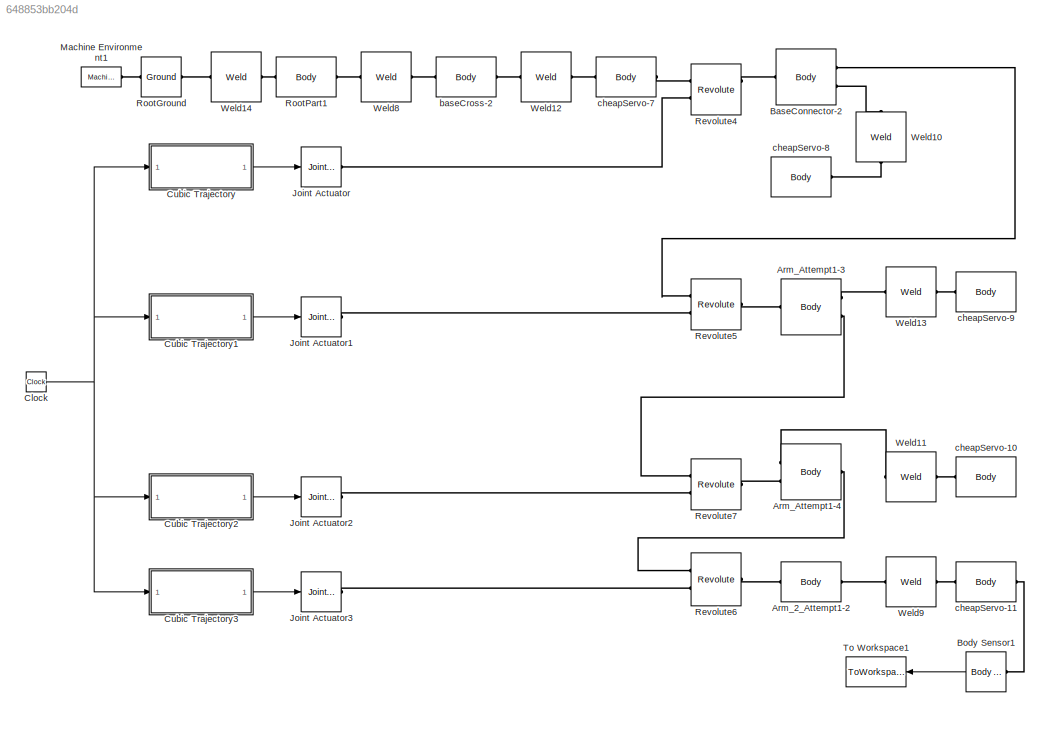
MODEL slx_648853bb204d
KIND model
BLOCK [Reference] Arm_2_Attempt1-2  REF=mblibv1/Bodies/Body
  AttachedToCS = CS1
  BodyColor = [0.792157;0.819608;0.933333]
  BodyColorSelMode = COLORPALETTE
  CG = Right$CG$[0.0802063 0.117359 0.26392]$WORLD$WORLD$m$[0 0 -1;0 1 0;1 0 0]$3x3 Transform$rad$WORLD$false$none
  CGPos = [0.0802063 0.117359 0.26392]
  CGRot = [0 0 -1;0 1 0;1 0 0]
  CS0Pos = []
  CS0Rot = []
  CS10Pos = []
  CS10Rot = []
  CS11Pos = []
  CS11Rot = []
  CS12Pos = []
  CS12Rot = []
  CS13Pos = []
  CS13Rot = []
  CS14Pos = []
  CS14Rot = []
  CS15Pos = []
  CS15Rot = []
  CS16Pos = []
  CS16Rot = []
  CS17Pos = []
  CS17Rot = []
  CS18Pos = []
  CS18Rot = []
  CS19Pos = []
  CS19Rot = []
  CS1Pos = [0.0387132 0.111386 0.303805]
  CS1Rot = [0 0 -1;0 1 0;1 0 0]
  CS20Pos = []
  CS20Rot = []
  CS2Pos = [0.0387132 0.111386 0.303805]
  CS2Rot = [1 0 0;0 1 0;0 0 1]
  CS3Pos = [0.0587132 0.117456 0.279]
  CS3Rot = [1 0 0;0 1 0;0 0 1]
  CS4Pos = []
  CS4Rot = []
  CS5Pos = []
  CS5Rot = []
  CS6Pos = []
  CS6Rot = []
  CS7Pos = []
  CS7Rot = []
  CS8Pos = []
  CS8Rot = []
  CS9Pos = []
  CS9Rot = []
  ClassName = Body
  Density = 1
  DensityUnits = kg/m^3
  DensityUse = false
  DialogClass = MechanicalBodyBlock
  GraphicsFileName = Arm_new - Arm_2_Attempt1-1.STL
  GraphicsMode = GFXFILE
  Inertia = [1.93456e-06,-1.28538e-09,1.03955e-07;-1.28538e-09,2.88684e-06,-1.81312e-09;1.03955e-07,-1.81312e-09,1.07e-06]
  InertiaUnits = kg*m^2
  LConnTagsString = CS3
  Mass = 0.00482788
  MassUnits = kg
  Ports = [0, 0, 0, 0, 0, 1, 1]
  RConnTagsString = CS2
  Shape = Cylinder
  ShapeDims = [1 1]
  ShapeUnits = m
  ShapeUse = false
  SourceBlock = mblibv1/Bodies/Body
  SourceType = Body
  UpdateFromCAD = on
  WorkingFrames = Right$CS1$[0.0387132 0.111386 0.303805]$WORLD$WORLD$m$[0 0 -1;0 1 0;1 0 0]$3x3 Transform$rad$WORLD$false$none#Right$CS2$[0.0387132 0.111386 0.303805]$WORLD$WORLD$m$[1 0 0;0 1 0;0 0 1]$3x3 Transform$rad$WORLD$true$none#Left$CS3$[0.0587132 0.117456 0.279]$WORLD$WORLD$m$[1 0 0;0 1 0;0 0 1]$3x3 Transform$rad$WORLD$true$none
BLOCK [Reference] Arm_Attempt1-3  REF=mblibv1/Bodies/Body
  AttachedToCS = CS1
  BodyColor = [0.792157;0.819608;0.933333]
  BodyColorSelMode = COLORPALETTE
  CG = Right$CG$[0.0109911 0.0413075 0.267024]$WORLD$WORLD$m$[0 -1 0;0 0 -1;1 0 0]$3x3 Transform$rad$WORLD$false$none
  CGPos = [0.0109911 0.0413075 0.267024]
  CGRot = [0 -1 0;0 0 -1;1 0 0]
  CS0Pos = []
  CS0Rot = []
  CS10Pos = []
  CS10Rot = []
  CS11Pos = []
  CS11Rot = []
  CS12Pos = []
  CS12Rot = []
  CS13Pos = []
  CS13Rot = []
  CS14Pos = []
  CS14Rot = []
  CS15Pos = []
  CS15Rot = []
  CS16Pos = []
  CS16Rot = []
  CS17Pos = []
  CS17Rot = []
  CS18Pos = []
  CS18Rot = []
  CS19Pos = []
  CS19Rot = []
  CS1Pos = [0.0169693 -0.00863884 0.305399]
  CS1Rot = [0 -1 0;0 0 -1;1 0 0]
  CS20Pos = []
  CS20Rot = []
  CS2Pos = [0.0108991 0.00236116 0.279]
  CS2Rot = [1 0 0;0 1 0;0 0 1]
  CS3Pos = [0.00496925 0.0753612 0.277464]
  CS3Rot = [1 0 0;0 1 0;0 0 1]
  CS4Pos = [0.0109693 0.0698112 0.279]
  CS4Rot = [1 0 0;0 1 0;0 0 1]
  CS5Pos = []
  CS5Rot = []
  CS6Pos = []
  CS6Rot = []
  CS7Pos = []
  CS7Rot = []
  CS8Pos = []
  CS8Rot = []
  CS9Pos = []
  CS9Rot = []
  ClassName = Body
  Density = 1
  DensityUnits = kg/m^3
  DensityUse = false
  DialogClass = MechanicalBodyBlock
  GraphicsFileName = Arm_new - Arm_Attempt1-1.STL
  GraphicsMode = GFXFILE
  Inertia = [3.57587e-06,1.12045e-09,4.59326e-07;1.12045e-09,4.47292e-06,-5.09042e-09;4.59326e-07,-5.09042e-09,1.05685e-06]
  InertiaUnits = kg*m^2
  LConnTagsString = CS2
  Mass = 0.00663008
  MassUnits = kg
  Ports = [0, 0, 0, 0, 0, 1, 2]
  RConnTagsString = CS3|CS4
  Shape = Cylinder
  ShapeDims = [1 1]
  ShapeUnits = m
  ShapeUse = false
  SourceBlock = mblibv1/Bodies/Body
  SourceType = Body
  UpdateFromCAD = on
  WorkingFrames = Right$CS1$[0.0169693 -0.00863884 0.305399]$WORLD$WORLD$m$[0 -1 0;0 0 -1;1 0 0]$3x3 Transform$rad$WORLD$false$none#Left$CS2$[0.0108991 0.00236116 0.279]$WORLD$WORLD$m$[1 0 0;0 1 0;0 0 1]$3x3 Transform$rad$WORLD$true$none#Right$CS3$[0.00496925 0.0753612 0.277464]$WORLD$WORLD$m$[1 0 0;0 1 0;0 0 1]$3x3 Transform$rad$WORLD$true$none#Right$CS4$[0.0109693 0.0698112 0.279]$WORLD$WORLD$m$[1 0 0;0 1 0;0 0 1...<+35ch>
BLOCK [Reference] Arm_Attempt1-4  REF=mblibv1/Bodies/Body
  AttachedToCS = CS1
  BodyColor = [0.792157;0.819608;0.933333]
  BodyColorSelMode = COLORPALETTE
  CG = Right$CG$[0.0385735 0.0972853 0.267024]$WORLD$WORLD$m$[0 -0.707107 -0.707107;0 0.707107 -0.707107;1 0 0]$3x3 Transform$rad$WORLD$false$none
  CGPos = [0.0385735 0.0972853 0.267024]
  CGRot = [0 -0.707107 -0.707107;0 0.707107 -0.707107;1 0 0]
  CS0Pos = []
  CS0Rot = []
  CS10Pos = []
  CS10Rot = []
  CS11Pos = []
  CS11Rot = []
  CS12Pos = []
  CS12Rot = []
  CS13Pos = []
  CS13Rot = []
  CS14Pos = []
  CS14Rot = []
  CS15Pos = []
  CS15Rot = []
  CS16Pos = []
  CS16Rot = []
  CS17Pos = []
  CS17Rot = []
  CS18Pos = []
  CS18Rot = []
  CS19Pos = []
  CS19Rot = []
  CS1Pos = [0.00748332 0.0577407 0.305399]
  CS1Rot = [0 -0.707107 -0.707107;0 0.707107 -0.707107;1 0 0]
  CS20Pos = []
  CS20Rot = []
  CS2Pos = [0.0667389 0.117279 0.265014]
  CS2Rot = [1 0 0;0 1 0;0 0 1]
  CS3Pos = [0.0587132 0.117456 0.279]
  CS3Rot = [1 0 0;0 1 0;0 0 1]
  CS4Pos = [0.0109693 0.0698112 0.279]
  CS4Rot = [1 0 0;0 1 0;0 0 1]
  CS5Pos = []
  CS5Rot = []
  CS6Pos = []
  CS6Rot = []
  CS7Pos = []
  CS7Rot = []
  CS8Pos = []
  CS8Rot = []
  CS9Pos = []
  CS9Rot = []
  ClassName = Body
  Density = 1
  DensityUnits = kg/m^3
  DensityUse = false
  DialogClass = MechanicalBodyBlock
  GraphicsFileName = Arm_new - Arm_Attempt1-2.STL
  GraphicsMode = GFXFILE
  Inertia = [3.57587e-06,1.12045e-09,4.59326e-07;1.12045e-09,4.47292e-06,-5.09042e-09;4.59326e-07,-5.09042e-09,1.05685e-06]
  InertiaUnits = kg*m^2
  LConnTagsString = CS2|CS4
  Mass = 0.00663008
  MassUnits = kg
  Ports = [0, 0, 0, 0, 0, 2, 1]
  RConnTagsString = CS3
  Shape = Cylinder
  ShapeDims = [1 1]
  ShapeUnits = m
  ShapeUse = false
  SourceBlock = mblibv1/Bodies/Body
  SourceType = Body
  UpdateFromCAD = on
  WorkingFrames = Right$CS1$[0.00748332 0.0577407 0.305399]$WORLD$WORLD$m$[0 -0.707107 -0.707107;0 0.707107 -0.707107;1 0 0]$3x3 Transform$rad$WORLD$false$none#Left$CS2$[0.0667389 0.117279 0.265014]$WORLD$WORLD$m$[1 0 0;0 1 0;0 0 1]$3x3 Transform$rad$WORLD$true$none#Right$CS3$[0.0587132 0.117456 0.279]$WORLD$WORLD$m$[1 0 0;0 1 0;0 0 1]$3x3 Transform$rad$WORLD$true$none#Left$CS4$[0.0109693 0.0698112 0.279]$WORLD$WOR...<+58ch>
BLOCK [Reference] BaseConnector-2  REF=mblibv1/Bodies/Body
  AttachedToCS = CS1
  BodyColor = [1;1;1]
  BodyColorSelMode = COLORPALETTE
  CG = Right$CG$[0.00564211 -0.00116004 0.271229]$WORLD$WORLD$m$[1 0 0;0 1 0;0 0 1]$3x3 Transform$rad$WORLD$false$none
  CGPos = [0.00564211 -0.00116004 0.271229]
  CGRot = [1 0 0;0 1 0;0 0 1]
  CS0Pos = []
  CS0Rot = []
  CS10Pos = []
  CS10Rot = []
  CS11Pos = []
  CS11Rot = []
  CS12Pos = []
  CS12Rot = []
  CS13Pos = []
  CS13Rot = []
  CS14Pos = []
  CS14Rot = []
  CS15Pos = []
  CS15Rot = []
  CS16Pos = []
  CS16Rot = []
  CS17Pos = []
  CS17Rot = []
  CS18Pos = []
  CS18Rot = []
  CS19Pos = []
  CS19Rot = []
  CS1Pos = [0.00554911 -0.00353884 0.2601]
  CS1Rot = [1 0 0;0 1 0;0 0 1]
  CS20Pos = []
  CS20Rot = []
  CS2Pos = [0.00554911 -0.00353884 0.27]
  CS2Rot = [1 0 0;0 1 0;0 0 1]
  CS3Pos = [0.0108991 0.00236116 0.279]
  CS3Rot = [1 0 0;0 1 0;0 0 1]
  CS4Pos = [0.00554911 -0.00353884 0.2601]
  CS4Rot = [1 0 0;0 1 0;0 0 1]
  CS5Pos = []
  CS5Rot = []
  CS6Pos = []
  CS6Rot = []
  CS7Pos = []
  CS7Rot = []
  CS8Pos = []
  CS8Rot = []
  CS9Pos = []
  CS9Rot = []
  ClassName = Body
  Density = 1
  DensityUnits = kg/m^3
  DensityUse = false
  DialogClass = MechanicalBodyBlock
  GraphicsFileName = Arm_new - BaseConnector-1.STL
  GraphicsMode = GFXFILE
  Inertia = [1.81369e-07,-9.46923e-10,-2.62761e-09;-9.46923e-10,3.3813e-07,-2.11475e-08;-2.62761e-09,-2.11475e-08,2.75643e-07]
  InertiaUnits = kg*m^2
  LConnTagsString = CS2
  Mass = 0.00289161
  MassUnits = kg
  Ports = [0, 0, 0, 0, 0, 1, 2]
  RConnTagsString = CS3|CS4
  Shape = Cylinder
  ShapeDims = [1 1]
  ShapeUnits = m
  ShapeUse = false
  SourceBlock = mblibv1/Bodies/Body
  SourceType = Body
  UpdateFromCAD = on
  WorkingFrames = Right$CS1$[0.00554911 -0.00353884 0.2601]$WORLD$WORLD$m$[1 0 0;0 1 0;0 0 1]$3x3 Transform$rad$WORLD$false$none#Left$CS2$[0.00554911 -0.00353884 0.27]$WORLD$WORLD$m$[1 0 0;0 1 0;0 0 1]$3x3 Transform$rad$WORLD$true$none#Right$CS3$[0.0108991 0.00236116 0.279]$WORLD$WORLD$m$[1 0 0;0 1 0;0 0 1]$3x3 Transform$rad$WORLD$true$none#Right$CS4$[0.00554911 -0.00353884 0.2601]$WORLD$WORLD$m$[1 0 0;0 1 0;0 0 1]...<+34ch>
BLOCK [Reference] Body Sensor1  REF=mblibv1/Sensors & 
Actuators/Body Sensor
  Acceleration = off
  AccelerationUnits = m/s^2
  ActiveIO = on
  Angle = on
  AngleUnits = deg
  ArcAcceleration = off
  ArcAccelerationUnits = deg/s^2
  ArcVelocity = off
  ArcVelocityUnits = deg/s
  ClassName = BodySensor
  CoordPosition = on
  CoordPositionUnits = m
  DialogClass = MechanicalSensorBlock
  Muxed = on
  OutputVector = [1]
  PhysicalDomain = Mechanical
  PortType = blob
  Ports = [0, 1, 0, 0, 0, 1]
  Pose = off
  Quaternion = on
  QuaternionDDT = off
  QuaternionDT = off
  QuaternionUnits = off
  ReferenceFrame = Absolute (World)
  SourceBlock = mblibv1/Sensors & \nActuators/Body Sensor
  SourceType = Body Sensor
  UpdateFromCAD = off
  Velocity = off
  VelocityUnits = m/s
  Width = 3
BLOCK [Clock] Clock
  Decimation = 1
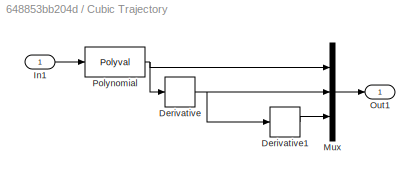
BLOCK [SubSystem] Cubic Trajectory
  Ports = [1, 1]
  RequestExecContextInheritance = off
BLOCK [Derivative] Cubic Trajectory/Derivative
BLOCK [Derivative] Cubic Trajectory/Derivative1
BLOCK [Inport] Cubic Trajectory/In1
  IconDisplay = Port number
BLOCK [Mux] Cubic Trajectory/Mux
  DisplayOption = bar
  Inputs = 3
  Ports = [3, 1]
BLOCK [Outport] Cubic Trajectory/Out1
  IconDisplay = Port number
BLOCK [Polyval] Cubic Trajectory/Polynomial
  Coefs = [-1.5608\n    2.3462\n         0\n         0]
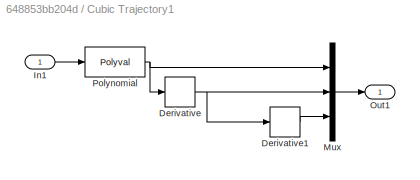
BLOCK [SubSystem] Cubic Trajectory1
  Ports = [1, 1]
  RequestExecContextInheritance = off
BLOCK [Derivative] Cubic Trajectory1/Derivative
BLOCK [Derivative] Cubic Trajectory1/Derivative1
BLOCK [Inport] Cubic Trajectory1/In1
  IconDisplay = Port number
BLOCK [Mux] Cubic Trajectory1/Mux
  DisplayOption = bar
  Inputs = 3
  Ports = [3, 1]
BLOCK [Outport] Cubic Trajectory1/Out1
  IconDisplay = Port number
BLOCK [Polyval] Cubic Trajectory1/Polynomial
  Coefs = [ 0.0100\n   -0.0100\n         0\n         0]
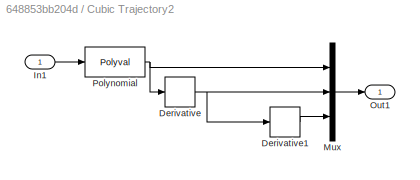
BLOCK [SubSystem] Cubic Trajectory2
  Ports = [1, 1]
  RequestExecContextInheritance = off
BLOCK [Derivative] Cubic Trajectory2/Derivative
BLOCK [Derivative] Cubic Trajectory2/Derivative1
BLOCK [Inport] Cubic Trajectory2/In1
  IconDisplay = Port number
BLOCK [Mux] Cubic Trajectory2/Mux
  DisplayOption = bar
  Inputs = 3
  Ports = [3, 1]
BLOCK [Outport] Cubic Trajectory2/Out1
  IconDisplay = Port number
BLOCK [Polyval] Cubic Trajectory2/Polynomial
  Coefs = [-2.0319\n    3.0529\n         0\n         0]
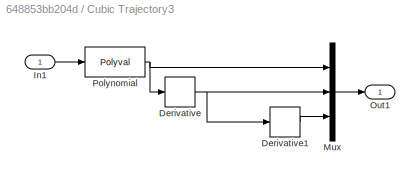
BLOCK [SubSystem] Cubic Trajectory3
  Ports = [1, 1]
  RequestExecContextInheritance = off
BLOCK [Derivative] Cubic Trajectory3/Derivative
BLOCK [Derivative] Cubic Trajectory3/Derivative1
BLOCK [Inport] Cubic Trajectory3/In1
  IconDisplay = Port number
BLOCK [Mux] Cubic Trajectory3/Mux
  DisplayOption = bar
  Inputs = 3
  Ports = [3, 1]
BLOCK [Outport] Cubic Trajectory3/Out1
  IconDisplay = Port number
BLOCK [Polyval] Cubic Trajectory3/Polynomial
  Coefs = [-0.6180\n    0.9320\n         0\n         0]
BLOCK [Reference] Joint Actuator  REF=mblibv1/Sensors & 
Actuators/Joint Actuator
  AccelerationUnits = m/s^2
  ActiveIO = on
  ActuationStyle = Motion
  AngleUnits = rad
  ArcAccelerationUnits = rad/s^2
  ArcVelocityUnits = rad/s
  ClassName = JointActuator
  CoordPositionUnits = m
  DialogClass = MechanicalActuatorBlock
  ForceUnits = N
  PhysicalDomain = Mechanical
  PortType = blob
  Ports = [1, 0, 0, 0, 0, 0, 1]
  Primitive = R1
  ReferenceFrame = Absolute (World)
  SourceBlock = mblibv1/Sensors & \nActuators/Joint Actuator
  SourceType = Joint Actuator
  TorqueUnits = N*m
  UpdateFromCAD = off
  VelocityUnits = m/s
  Width = 3
BLOCK [Reference] Joint Actuator1  REF=mblibv1/Sensors & 
Actuators/Joint Actuator
  AccelerationUnits = m/s^2
  ActiveIO = on
  ActuationStyle = Motion
  AngleUnits = rad
  ArcAccelerationUnits = rad/s^2
  ArcVelocityUnits = rad/s
  ClassName = JointActuator
  CoordPositionUnits = m
  DialogClass = MechanicalActuatorBlock
  ForceUnits = N
  PhysicalDomain = Mechanical
  PortType = blob
  Ports = [1, 0, 0, 0, 0, 0, 1]
  Primitive = R1
  ReferenceFrame = Absolute (World)
  SourceBlock = mblibv1/Sensors & \nActuators/Joint Actuator
  SourceType = Joint Actuator
  TorqueUnits = N*m
  UpdateFromCAD = off
  VelocityUnits = m/s
  Width = 3
BLOCK [Reference] Joint Actuator2  REF=mblibv1/Sensors & 
Actuators/Joint Actuator
  AccelerationUnits = m/s^2
  ActiveIO = on
  ActuationStyle = Motion
  AngleUnits = rad
  ArcAccelerationUnits = rad/s^2
  ArcVelocityUnits = rad/s
  ClassName = JointActuator
  CoordPositionUnits = m
  DialogClass = MechanicalActuatorBlock
  ForceUnits = N
  PhysicalDomain = Mechanical
  PortType = blob
  Ports = [1, 0, 0, 0, 0, 0, 1]
  Primitive = R1
  ReferenceFrame = Absolute (World)
  SourceBlock = mblibv1/Sensors & \nActuators/Joint Actuator
  SourceType = Joint Actuator
  TorqueUnits = N*m
  UpdateFromCAD = off
  VelocityUnits = m/s
  Width = 3
BLOCK [Reference] Joint Actuator3  REF=mblibv1/Sensors & 
Actuators/Joint Actuator
  AccelerationUnits = m/s^2
  ActiveIO = on
  ActuationStyle = Motion
  AngleUnits = rad
  ArcAccelerationUnits = rad/s^2
  ArcVelocityUnits = rad/s
  ClassName = JointActuator
  CoordPositionUnits = m
  DialogClass = MechanicalActuatorBlock
  ForceUnits = N
  PhysicalDomain = Mechanical
  PortType = blob
  Ports = [1, 0, 0, 0, 0, 0, 1]
  Primitive = R1
  ReferenceFrame = Absolute (World)
  SourceBlock = mblibv1/Sensors & \nActuators/Joint Actuator
  SourceType = Joint Actuator
  TorqueUnits = N*m
  UpdateFromCAD = off
  VelocityUnits = m/s
  Width = 3
BLOCK [Reference] Machine Environment1  REF=mblibv1/Bodies/Machine
Environment
  AnalysisType = Forward dynamics
  AngularAssemblyTolerance = 1e-3
  AngularAssemblyToleranceUnits = rad
  BodyColorSelMode = Use model default
  BodyVisualizationType = Use model default body geometries
  ClassName = Environment
  ConstraintAbsTolerance = 1e-4
  ConstraintRelTolerance = 1e-4
  ConstraintSolverType = Stabilizing
  DefaultBodyColor = [1 0 0]
  DialogTemplateClass = MECH.MachineEnvironment
  Dimensionality = Auto-detect
  Gravity = [0 -9.81 0]
  GravityAsSignal = off
  GravityUnits = m/s^2
  LinearAssemblyTolerance = 1e-3
  LinearAssemblyToleranceUnits = m
  PerturbationSize = 1e-5
  PhysicalDomain = Mechanical
  PortType = env
  Ports = [0, 0, 0, 0, 0, 0, 1]
  RedundancyAnalysisTolerance = 1e-14
  RedundancyAnalysisToleranceType = Automatically select tolerance
  SourceBlock = mblibv1/Bodies/Machine\nEnvironment
  SourceType = Machine Environment
  StatePerturbationType = Fixed
  SyncWhenCopied = off
  UseRobustSingularityHandling = off
  VisualizeMachine = on
BLOCK [Reference] Revolute4  REF=mblibv1/Joints/Revolute
  ClassName = Joint
  CutJoint = off
  DialogClass = JointBlock
  LConnTagsString = __newl0|SA1
  MarkAsCut = off
  NumSAPorts = 2
  Ports = [0, 0, 0, 0, 0, 2, 2]
  PrimitiveProps = R1$World$[0,1,0]$revolute
  Primitives = prismatic
  R1Axis = [0,1,0]
  RConnTagsString = __newr0|SA1
  SourceBlock = mblibv1/Joints/Revolute
  SourceType = Revolute
  UpdateFromCAD = on
BLOCK [Reference] Revolute5  REF=mblibv1/Joints/Revolute
  ClassName = Joint
  CutJoint = off
  DialogClass = JointBlock
  LConnTagsString = __newl0|SA1
  MarkAsCut = off
  NumSAPorts = 1
  Ports = [0, 0, 0, 0, 0, 2, 1]
  PrimitiveProps = R1$World$[0,0,-1]$revolute
  Primitives = prismatic
  R1Axis = [0,0,-1]
  RConnTagsString = __newr0
  SourceBlock = mblibv1/Joints/Revolute
  SourceType = Revolute
  UpdateFromCAD = on
BLOCK [Reference] Revolute6  REF=mblibv1/Joints/Revolute
  ClassName = Joint
  CutJoint = off
  DialogClass = JointBlock
  LConnTagsString = __newl0|SA1
  MarkAsCut = off
  NumSAPorts = 1
  Ports = [0, 0, 0, 0, 0, 2, 1]
  PrimitiveProps = R1$World$[0,0,-1]$revolute
  Primitives = prismatic
  R1Axis = [0,0,-1]
  RConnTagsString = __newr0
  SourceBlock = mblibv1/Joints/Revolute
  SourceType = Revolute
  UpdateFromCAD = on
BLOCK [Reference] Revolute7  REF=mblibv1/Joints/Revolute
  ClassName = Joint
  CutJoint = off
  DialogClass = JointBlock
  LConnTagsString = __newl0|SA1
  MarkAsCut = off
  NumSAPorts = 1
  Ports = [0, 0, 0, 0, 0, 2, 1]
  PrimitiveProps = R1$World$[0,0,-1]$revolute
  Primitives = prismatic
  R1Axis = [0,0,-1]
  RConnTagsString = __newr0
  SourceBlock = mblibv1/Joints/Revolute
  SourceType = Revolute
  UpdateFromCAD = on
BLOCK [Reference] RootGround  REF=mblibv1/Bodies/Ground
  ClassName = Ground
  CoordPosition = [0.024952,0.026403,0.267905]
  CoordPositionUnits = m
  DialogClass = GroundBlock
  LeftPortType = env
  MachineId = [1 0]
  ParameterChecksum = [449264359, 1693856497, 1829625602, 1228565225]
  PhysicalDomain = Mechanical
  Ports = [0, 0, 0, 0, 0, 1, 1]
  RightPortType = workingframe
  ShowEnvPort = on
  SourceBlock = mblibv1/Bodies/Ground
  SourceType = Ground
  StateVectorMgrId = 2
  TopologyChecksum = [1919634279, 3543996490, 3153834687, 3124392432]
  UpdateFromCAD = on
  UserDataPersistent = on
BLOCK [Reference] RootPart1  REF=mblibv1/Bodies/Body
  AttachedToCS = CS1
  BodyColor = [1;0;0]
  BodyColorSelMode = MACHINE_DEFAULT
  CG = Right$CG$[0.024952 0.026403 0.267905]$WORLD$WORLD$m$[1 0 0;0 1 0;0 0 1]$3x3 Transform$rad$WORLD$false$none
  CGPos = [0.024952 0.026403 0.267905]
  CGRot = [1 0 0;0 1 0;0 0 1]
  CS0Pos = []
  CS0Rot = []
  CS10Pos = []
  CS10Rot = []
  CS11Pos = []
  CS11Rot = []
  CS12Pos = []
  CS12Rot = []
  CS13Pos = []
  CS13Rot = []
  CS14Pos = []
  CS14Rot = []
  CS15Pos = []
  CS15Rot = []
  CS16Pos = []
  CS16Rot = []
  CS17Pos = []
  CS17Rot = []
  CS18Pos = []
  CS18Rot = []
  CS19Pos = []
  CS19Rot = []
  CS1Pos = [0 0 0]
  CS1Rot = [1 0 0;0 1 0;0 0 1]
  CS20Pos = []
  CS20Rot = []
  CS2Pos = [0.00554913 -0.0339934 0.27051]
  CS2Rot = [1 0 0;0 1 0;0 0 1]
  CS3Pos = [0.024952 0.026403 0.267905]
  CS3Rot = [1 0 0;0 1 0;0 0 1]
  CS4Pos = []
  CS4Rot = []
  CS5Pos = []
  CS5Rot = []
  CS6Pos = []
  CS6Rot = []
  CS7Pos = []
  CS7Rot = []
  CS8Pos = []
  CS8Rot = []
  CS9Pos = []
  CS9Rot = []
  ClassName = Body
  Density = 1
  DensityUnits = kg/m^3
  DensityUse = false
  DialogClass = MechanicalBodyBlock
  GraphicsMode = MACHINE_DEFAULT
  Inertia = [0,0,0;0,0,0;0,0,0]
  InertiaUnits = kg*m^2
  LConnTagsString = CS3
  Mass = 0
  MassUnits = kg
  Ports = [0, 0, 0, 0, 0, 1, 1]
  RConnTagsString = CS2
  Shape = Cylinder
  ShapeDims = [1 1]
  ShapeUnits = m
  ShapeUse = false
  SourceBlock = mblibv1/Bodies/Body
  SourceType = Body
  UpdateFromCAD = on
  WorkingFrames = Right$CS1$[0 0 0]$WORLD$WORLD$m$[1 0 0;0 1 0;0 0 1]$3x3 Transform$rad$WORLD$false$none#Right$CS2$[0.00554913 -0.0339934 0.27051]$WORLD$WORLD$m$[1 0 0;0 1 0;0 0 1]$3x3 Transform$rad$WORLD$true$none#Left$CS3$[0.024952 0.026403 0.267905]$WORLD$WORLD$m$[1 0 0;0 1 0;0 0 1]$3x3 Transform$rad$WORLD$true$none
BLOCK [ToWorkspace] To Workspace1
  FixptAsFi = on
  MaxDataPoints = inf
  Ports = [1]
  SampleTime = -1
  Save2DSignal = 3-D array (concatenate along third dimension)
  SaveFormat = Timeseries
  VariableName = Pee1
BLOCK [Reference] Weld10  REF=mblibv1/Joints/Weld
  ClassName = Joint
  CutJoint = off
  DialogClass = JointBlock
  LConnTagsString = __newl0
  MarkAsCut = off
  NumSAPorts = 0
  Ports = [0, 0, 0, 0, 0, 1, 1]
  PrimitiveProps = W$WORLD$[0.57735,0.57735,0.57735]$weld
  Primitives = weld
  RConnTagsString = __newr0
  SourceBlock = mblibv1/Joints/Weld
  SourceType = Weld
  UpdateFromCAD = on
  WAxis = [0.57735,0.57735,0.57735]
BLOCK [Reference] Weld11  REF=mblibv1/Joints/Weld
  ClassName = Joint
  CutJoint = off
  DialogClass = JointBlock
  LConnTagsString = __newl0
  MarkAsCut = off
  NumSAPorts = 0
  Ports = [0, 0, 0, 0, 0, 1, 1]
  PrimitiveProps = W$WORLD$[0.57735,0.57735,0.57735]$weld
  Primitives = weld
  RConnTagsString = __newr0
  SourceBlock = mblibv1/Joints/Weld
  SourceType = Weld
  UpdateFromCAD = on
  WAxis = [0.57735,0.57735,0.57735]
BLOCK [Reference] Weld12  REF=mblibv1/Joints/Weld
  ClassName = Joint
  CutJoint = off
  DialogClass = JointBlock
  LConnTagsString = __newl0
  MarkAsCut = off
  NumSAPorts = 0
  Ports = [0, 0, 0, 0, 0, 1, 1]
  PrimitiveProps = W$WORLD$[0.57735,0.57735,0.57735]$weld
  Primitives = weld
  RConnTagsString = __newr0
  SourceBlock = mblibv1/Joints/Weld
  SourceType = Weld
  UpdateFromCAD = on
  WAxis = [0.57735,0.57735,0.57735]
BLOCK [Reference] Weld13  REF=mblibv1/Joints/Weld
  ClassName = Joint
  CutJoint = off
  DialogClass = JointBlock
  LConnTagsString = __newl0
  MarkAsCut = off
  NumSAPorts = 0
  Ports = [0, 0, 0, 0, 0, 1, 1]
  PrimitiveProps = W$WORLD$[0.57735,0.57735,0.57735]$weld
  Primitives = weld
  RConnTagsString = __newr0
  SourceBlock = mblibv1/Joints/Weld
  SourceType = Weld
  UpdateFromCAD = on
  WAxis = [0.57735,0.57735,0.57735]
BLOCK [Reference] Weld14  REF=mblibv1/Joints/Weld
  ClassName = Joint
  CutJoint = off
  DialogClass = JointBlock
  LConnTagsString = __newl0
  MarkAsCut = off
  NumSAPorts = 0
  Ports = [0, 0, 0, 0, 0, 1, 1]
  PrimitiveProps = W$WORLD$[0.57735,0.57735,0.57735]$weld
  Primitives = weld
  RConnTagsString = __newr0
  SourceBlock = mblibv1/Joints/Weld
  SourceType = Weld
  UpdateFromCAD = on
  WAxis = [0.57735,0.57735,0.57735]
BLOCK [Reference] Weld8  REF=mblibv1/Joints/Weld
  ClassName = Joint
  CutJoint = off
  DialogClass = JointBlock
  LConnTagsString = __newl0
  MarkAsCut = off
  NumSAPorts = 0
  Ports = [0, 0, 0, 0, 0, 1, 1]
  PrimitiveProps = W$WORLD$[0.57735,0.57735,0.57735]$weld
  Primitives = weld
  RConnTagsString = __newr0
  SourceBlock = mblibv1/Joints/Weld
  SourceType = Weld
  UpdateFromCAD = on
  WAxis = [0.57735,0.57735,0.57735]
BLOCK [Reference] Weld9  REF=mblibv1/Joints/Weld
  ClassName = Joint
  CutJoint = off
  DialogClass = JointBlock
  LConnTagsString = __newl0
  MarkAsCut = off
  NumSAPorts = 0
  Ports = [0, 0, 0, 0, 0, 1, 1]
  PrimitiveProps = W$WORLD$[0.57735,0.57735,0.57735]$weld
  Primitives = weld
  RConnTagsString = __newr0
  SourceBlock = mblibv1/Joints/Weld
  SourceType = Weld
  UpdateFromCAD = on
  WAxis = [0.57735,0.57735,0.57735]
BLOCK [Reference] baseCross-2  REF=mblibv1/Bodies/Body
  AttachedToCS = CS1
  BodyColor = [1;1;1]
  BodyColorSelMode = COLORPALETTE
  CG = Right$CG$[0.00554913 -0.0339934 0.27051]$WORLD$WORLD$m$[1 0 0;0 1 0;0 0 1]$3x3 Transform$rad$WORLD$false$none
  CGPos = [0.00554913 -0.0339934 0.27051]
  CGRot = [1 0 0;0 1 0;0 0 1]
  CS0Pos = []
  CS0Rot = []
  CS10Pos = []
  CS10Rot = []
  CS11Pos = []
  CS11Rot = []
  CS12Pos = []
  CS12Rot = []
  CS13Pos = []
  CS13Rot = []
  CS14Pos = []
  CS14Rot = []
  CS15Pos = []
  CS15Rot = []
  CS16Pos = []
  CS16Rot = []
  CS17Pos = []
  CS17Rot = []
  CS18Pos = []
  CS18Rot = []
  CS19Pos = []
  CS19Rot = []
  CS1Pos = [0.00554911 -0.0334388 0.27]
  CS1Rot = [1 0 0;0 1 0;0 0 1]
  CS20Pos = []
  CS20Rot = []
  CS2Pos = [0.00554913 -0.0339934 0.27051]
  CS2Rot = [1 0 0;0 1 0;0 0 1]
  CS3Pos = [-0.000350892 -0.0175388 0.27]
  CS3Rot = [1 0 0;0 1 0;0 0 1]
  CS4Pos = []
  CS4Rot = []
  CS5Pos = []
  CS5Rot = []
  CS6Pos = []
  CS6Rot = []
  CS7Pos = []
  CS7Rot = []
  CS8Pos = []
  CS8Rot = []
  CS9Pos = []
  CS9Rot = []
  ClassName = Body
  Density = 1
  DensityUnits = kg/m^3
  DensityUse = false
  DialogClass = MechanicalBodyBlock
  GraphicsFileName = Arm_new - baseCross-1.STL
  GraphicsMode = GFXFILE
  Inertia = [9.50419e-05,-4.72341e-14,1.07796e-10;-4.72341e-14,0.000189164,-1.55231e-07;1.07796e-10,-1.55231e-07,9.48987e-05]
  InertiaUnits = kg*m^2
  LConnTagsString = CS2
  Mass = 0.0338588
  MassUnits = kg
  Ports = [0, 0, 0, 0, 0, 1, 1]
  RConnTagsString = CS3
  Shape = Cylinder
  ShapeDims = [1 1]
  ShapeUnits = m
  ShapeUse = false
  SourceBlock = mblibv1/Bodies/Body
  SourceType = Body
  UpdateFromCAD = on
  WorkingFrames = Right$CS1$[0.00554911 -0.0334388 0.27]$WORLD$WORLD$m$[1 0 0;0 1 0;0 0 1]$3x3 Transform$rad$WORLD$false$none#Left$CS2$[0.00554913 -0.0339934 0.27051]$WORLD$WORLD$m$[1 0 0;0 1 0;0 0 1]$3x3 Transform$rad$WORLD$true$none#Right$CS3$[-0.000350892 -0.0175388 0.27]$WORLD$WORLD$m$[1 0 0;0 1 0;0 0 1]$3x3 Transform$rad$WORLD$true$none
BLOCK [Reference] cheapServo-10  REF=mblibv1/Bodies/Body
  AttachedToCS = CS1
  BodyColor = [0.494118;0.494118;0.494118]
  BodyColorSelMode = COLORPALETTE
  CG = Right$CG$[0.0548517 0.113736 0.263624]$WORLD$WORLD$m$[-0.707107 0 0.707107;-0.707107 0 -0.707107;0 -1 0]$3x3 Transform$rad$WORLD$false$none
  CGPos = [0.0548517 0.113736 0.263624]
  CGRot = [-0.707107 0 0.707107;-0.707107 0 -0.707107;0 -1 0]
  CS0Pos = []
  CS0Rot = []
  CS10Pos = []
  CS10Rot = []
  CS11Pos = []
  CS11Rot = []
  CS12Pos = []
  CS12Rot = []
  CS13Pos = []
  CS13Rot = []
  CS14Pos = []
  CS14Rot = []
  CS15Pos = []
  CS15Rot = []
  CS16Pos = []
  CS16Rot = []
  CS17Pos = []
  CS17Rot = []
  CS18Pos = []
  CS18Rot = []
  CS19Pos = []
  CS19Rot = []
  CS1Pos = [0.054612 0.113496 0.265014]
  CS1Rot = [-0.707107 0 0.707107;-0.707107 0 -0.707107;0 -1 0]
  CS20Pos = []
  CS20Rot = []
  CS2Pos = [0.0667389 0.117279 0.265014]
  CS2Rot = [1 0 0;0 1 0;0 0 1]
  CS3Pos = []
  CS3Rot = []
  CS4Pos = []
  CS4Rot = []
  CS5Pos = []
  CS5Rot = []
  CS6Pos = []
  CS6Rot = []
  CS7Pos = []
  CS7Rot = []
  CS8Pos = []
  CS8Rot = []
  CS9Pos = []
  CS9Rot = []
  ClassName = Body
  Density = 1
  DensityUnits = kg/m^3
  DensityUse = false
  DialogClass = MechanicalBodyBlock
  GraphicsFileName = Arm_new - cheapServo-5.STL
  GraphicsMode = GFXFILE
  Inertia = [4.96531e-07,3.23519e-08,0;3.23519e-08,4.44048e-07,0;0,0,7.67618e-07]
  InertiaUnits = kg*m^2
  Mass = 0.00769542
  MassUnits = kg
  Ports = [0, 0, 0, 0, 0, 0, 1]
  RConnTagsString = CS2
  Shape = Cylinder
  ShapeDims = [1 1]
  ShapeUnits = m
  ShapeUse = false
  SourceBlock = mblibv1/Bodies/Body
  SourceType = Body
  UpdateFromCAD = on
  WorkingFrames = Right$CS1$[0.054612 0.113496 0.265014]$WORLD$WORLD$m$[-0.707107 0 0.707107;-0.707107 0 -0.707107;0 -1 0]$3x3 Transform$rad$WORLD$false$none#Right$CS2$[0.0667389 0.117279 0.265014]$WORLD$WORLD$m$[1 0 0;0 1 0;0 0 1]$3x3 Transform$rad$WORLD$true$none
BLOCK [Reference] cheapServo-11  REF=mblibv1/Bodies/Body
  AttachedToCS = CS1
  BodyColor = [0.49412 0.49412 0.49412]
  BodyColorSelMode = COLORPALETTE
  CG = Right$CG$[0.105855 0.117286 0.265314]$WORLD$WORLD$m$[0 1 0;0 0 1;1 0 0]$3x3 Transform$rad$WORLD$false$none
  CGPos = [0.105855 0.117286 0.265314]
  CGRot = [0 1 0;0 0 1;1 0 0]
  CS0Pos = []
  CS0Rot = []
  CS10Pos = []
  CS10Rot = []
  CS11Pos = []
  CS11Rot = []
  CS12Pos = []
  CS12Rot = []
  CS13Pos = []
  CS13Rot = []
  CS14Pos = []
  CS14Rot = []
  CS15Pos = []
  CS15Rot = []
  CS16Pos = []
  CS16Rot = []
  CS17Pos = []
  CS17Rot = []
  CS18Pos = []
  CS18Rot = []
  CS19Pos = []
  CS19Rot = []
  CS1Pos = [0.104465 0.117286 0.265653]
  CS1Rot = [0 1 0;0 0 1;1 0 0]
  CS20Pos = []
  CS20Rot = []
  CS2Pos = [0.0387132 0.111386 0.303805]
  CS2Rot = [1 0 0;0 1 0;0 0 1]
  CS3Pos = []
  CS3Rot = []
  CS4Pos = []
  CS4Rot = []
  CS5Pos = []
  CS5Rot = []
  CS6Pos = []
  CS6Rot = []
  CS7Pos = []
  CS7Rot = []
  CS8Pos = []
  CS8Rot = []
  CS9Pos = []
  CS9Rot = []
  ClassName = Body
  Density = 1
  DensityUnits = kg/m^3
  DensityUse = false
  DialogClass = MechanicalBodyBlock
  GraphicsFileName = Arm_new - cheapServo-6.STL
  GraphicsMode = GFXFILE
  Inertia = [4.96531e-07,3.23519e-08,0;3.23519e-08,4.44048e-07,0;0,0,7.67618e-07]
  InertiaUnits = kg*m^2
  LConnTagsString = CS2
  Mass = 0.00769542
  MassUnits = kg
  Ports = [0, 0, 0, 0, 0, 1, 1]
  RConnTagsString = CS1
  Shape = Cylinder
  ShapeDims = [1 1]
  ShapeUnits = m
  ShapeUse = false
  SourceBlock = mblibv1/Bodies/Body
  SourceType = Body
  UpdateFromCAD = on
  WorkingFrames = Right$CS1$[0.104465 0.117286 0.265653]$World$World$m$[0 1 0;0 0 1;1 0 0]$3x3 Transform$rad$WORLD$true$none#Left$CS2$[0.0387132 0.111386 0.303805]$WORLD$WORLD$m$[1 0 0;0 1 0;0 0 1]$3x3 Transform$rad$WORLD$true$none
BLOCK [Reference] cheapServo-7  REF=mblibv1/Bodies/Body
  AttachedToCS = CS1
  BodyColor = [0.494118;0.494118;0.494118]
  BodyColorSelMode = COLORPALETTE
  CG = Right$CG$[0.00554911 -0.0206986 0.275011]$WORLD$WORLD$m$[0 0 -1;0 1 0;1 0 0]$3x3 Transform$rad$WORLD$false$none
  CGPos = [0.00554911 -0.0206986 0.275011]
  CGRot = [0 0 -1;0 1 0;1 0 0]
  CS0Pos = []
  CS0Rot = []
  CS10Pos = []
  CS10Rot = []
  CS11Pos = []
  CS11Rot = []
  CS12Pos = []
  CS12Rot = []
  CS13Pos = []
  CS13Rot = []
  CS14Pos = []
  CS14Rot = []
  CS15Pos = []
  CS15Rot = []
  CS16Pos = []
  CS16Rot = []
  CS17Pos = []
  CS17Rot = []
  CS18Pos = []
  CS18Rot = []
  CS19Pos = []
  CS19Rot = []
  CS1Pos = [0.00554911 -0.0220888 0.27535]
  CS1Rot = [0 0 -1;0 1 0;1 0 0]
  CS20Pos = []
  CS20Rot = []
  CS2Pos = [0.00554911 -0.00353884 0.27]
  CS2Rot = [1 0 0;0 1 0;0 0 1]
  CS3Pos = [-0.000350892 -0.0175388 0.27]
  CS3Rot = [1 0 0;0 1 0;0 0 1]
  CS4Pos = []
  CS4Rot = []
  CS5Pos = []
  CS5Rot = []
  CS6Pos = []
  CS6Rot = []
  CS7Pos = []
  CS7Rot = []
  CS8Pos = []
  CS8Rot = []
  CS9Pos = []
  CS9Rot = []
  ClassName = Body
  Density = 1
  DensityUnits = kg/m^3
  DensityUse = false
  DialogClass = MechanicalBodyBlock
  GraphicsFileName = Arm_new - cheapServo-1.STL
  GraphicsMode = GFXFILE
  Inertia = [4.96531e-07,3.23519e-08,0;3.23519e-08,4.44048e-07,0;0,0,7.67618e-07]
  InertiaUnits = kg*m^2
  LConnTagsString = CS3
  Mass = 0.00769542
  MassUnits = kg
  Ports = [0, 0, 0, 0, 0, 1, 1]
  RConnTagsString = CS2
  Shape = Cylinder
  ShapeDims = [1 1]
  ShapeUnits = m
  ShapeUse = false
  SourceBlock = mblibv1/Bodies/Body
  SourceType = Body
  UpdateFromCAD = on
  WorkingFrames = Right$CS1$[0.00554911 -0.0220888 0.27535]$WORLD$WORLD$m$[0 0 -1;0 1 0;1 0 0]$3x3 Transform$rad$WORLD$false$none#Right$CS2$[0.00554911 -0.00353884 0.27]$WORLD$WORLD$m$[1 0 0;0 1 0;0 0 1]$3x3 Transform$rad$WORLD$true$none#Left$CS3$[-0.000350892 -0.0175388 0.27]$WORLD$WORLD$m$[1 0 0;0 1 0;0 0 1]$3x3 Transform$rad$WORLD$true$none
BLOCK [Reference] cheapServo-8  REF=mblibv1/Bodies/Body
  AttachedToCS = CS1
  BodyColor = [0.494118;0.494118;0.494118]
  BodyColorSelMode = COLORPALETTE
  CG = Right$CG$[0.00588816 0.00236116 0.26326]$WORLD$WORLD$m$[-1 0 0;0 0 -1;0 -1 0]$3x3 Transform$rad$WORLD$false$none
  CGPos = [0.00588816 0.00236116 0.26326]
  CGRot = [-1 0 0;0 0 -1;0 -1 0]
  CS0Pos = []
  CS0Rot = []
  CS10Pos = []
  CS10Rot = []
  CS11Pos = []
  CS11Rot = []
  CS12Pos = []
  CS12Rot = []
  CS13Pos = []
  CS13Rot = []
  CS14Pos = []
  CS14Rot = []
  CS15Pos = []
  CS15Rot = []
  CS16Pos = []
  CS16Rot = []
  CS17Pos = []
  CS17Rot = []
  CS18Pos = []
  CS18Rot = []
  CS19Pos = []
  CS19Rot = []
  CS1Pos = [0.00554911 0.00236116 0.26465]
  CS1Rot = [-1 0 0;0 0 -1;0 -1 0]
  CS20Pos = []
  CS20Rot = []
  CS2Pos = [0.00554911 -0.00353884 0.2601]
  CS2Rot = [1 0 0;0 1 0;0 0 1]
  CS3Pos = []
  CS3Rot = []
  CS4Pos = []
  CS4Rot = []
  CS5Pos = []
  CS5Rot = []
  CS6Pos = []
  CS6Rot = []
  CS7Pos = []
  CS7Rot = []
  CS8Pos = []
  CS8Rot = []
  CS9Pos = []
  CS9Rot = []
  ClassName = Body
  Density = 1
  DensityUnits = kg/m^3
  DensityUse = false
  DialogClass = MechanicalBodyBlock
  GraphicsFileName = Arm_new - cheapServo-2.STL
  GraphicsMode = GFXFILE
  Inertia = [4.96531e-07,3.23519e-08,0;3.23519e-08,4.44048e-07,0;0,0,7.67618e-07]
  InertiaUnits = kg*m^2
  LConnTagsString = CS2
  Mass = 0.00769542
  MassUnits = kg
  Ports = [0, 0, 0, 0, 0, 1]
  Shape = Cylinder
  ShapeDims = [1 1]
  ShapeUnits = m
  ShapeUse = false
  SourceBlock = mblibv1/Bodies/Body
  SourceType = Body
  UpdateFromCAD = on
  WorkingFrames = Right$CS1$[0.00554911 0.00236116 0.26465]$WORLD$WORLD$m$[-1 0 0;0 0 -1;0 -1 0]$3x3 Transform$rad$WORLD$false$none#Left$CS2$[0.00554911 -0.00353884 0.2601]$WORLD$WORLD$m$[1 0 0;0 1 0;0 0 1]$3x3 Transform$rad$WORLD$true$none
BLOCK [Reference] cheapServo-9  REF=mblibv1/Bodies/Body
  AttachedToCS = CS1
  BodyColor = [0.494118;0.494118;0.494118]
  BodyColorSelMode = COLORPALETTE
  CG = Right$CG$[0.0108693 0.0644502 0.263624]$WORLD$WORLD$m$[0 0 1;-1 0 0;0 -1 0]$3x3 Transform$rad$WORLD$false$none
  CGPos = [0.0108693 0.0644502 0.263624]
  CGRot = [0 0 1;-1 0 0;0 -1 0]
  CS0Pos = []
  CS0Rot = []
  CS10Pos = []
  CS10Rot = []
  CS11Pos = []
  CS11Rot = []
  CS12Pos = []
  CS12Rot = []
  CS13Pos = []
  CS13Rot = []
  CS14Pos = []
  CS14Rot = []
  CS15Pos = []
  CS15Rot = []
  CS16Pos = []
  CS16Rot = []
  CS17Pos = []
  CS17Rot = []
  CS18Pos = []
  CS18Rot = []
  CS19Pos = []
  CS19Rot = []
  CS1Pos = [0.0108693 0.0641112 0.265014]
  CS1Rot = [0 0 1;-1 0 0;0 -1 0]
  CS20Pos = []
  CS20Rot = []
  CS2Pos = [0.00496925 0.0753612 0.277464]
  CS2Rot = [1 0 0;0 1 0;0 0 1]
  CS3Pos = []
  CS3Rot = []
  CS4Pos = []
  CS4Rot = []
  CS5Pos = []
  CS5Rot = []
  CS6Pos = []
  CS6Rot = []
  CS7Pos = []
  CS7Rot = []
  CS8Pos = []
  CS8Rot = []
  CS9Pos = []
  CS9Rot = []
  ClassName = Body
  Density = 1
  DensityUnits = kg/m^3
  DensityUse = false
  DialogClass = MechanicalBodyBlock
  GraphicsFileName = Arm_new - cheapServo-3.STL
  GraphicsMode = GFXFILE
  Inertia = [4.96531e-07,3.23519e-08,0;3.23519e-08,4.44048e-07,0;0,0,7.67618e-07]
  InertiaUnits = kg*m^2
  LConnTagsString = CS2
  Mass = 0.00769542
  MassUnits = kg
  Ports = [0, 0, 0, 0, 0, 1]
  Shape = Cylinder
  ShapeDims = [1 1]
  ShapeUnits = m
  ShapeUse = false
  SourceBlock = mblibv1/Bodies/Body
  SourceType = Body
  UpdateFromCAD = on
  WorkingFrames = Right$CS1$[0.0108693 0.0641112 0.265014]$WORLD$WORLD$m$[0 0 1;-1 0 0;0 -1 0]$3x3 Transform$rad$WORLD$false$none#Left$CS2$[0.00496925 0.0753612 0.277464]$WORLD$WORLD$m$[1 0 0;0 1 0;0 0 1]$3x3 Transform$rad$WORLD$true$none
LINE Body Sensor1:1 -> To Workspace1:1
NET Clock:1 -> Cubic Trajectory1:1, Cubic Trajectory2:1, Cubic Trajectory3:1, Cubic Trajectory:1
LINE Cubic Trajectory/Derivative1:1 -> Cubic Trajectory/Mux:3
NET Cubic Trajectory/Derivative:1 -> Cubic Trajectory/Derivative1:1, Cubic Trajectory/Mux:2
LINE Cubic Trajectory/In1:1 -> Cubic Trajectory/Polynomial:1
LINE Cubic Trajectory/Mux:1 -> Cubic Trajectory/Out1:1
NET Cubic Trajectory/Polynomial:1 -> Cubic Trajectory/Derivative:1, Cubic Trajectory/Mux:1
LINE Cubic Trajectory1/Derivative1:1 -> Cubic Trajectory1/Mux:3
NET Cubic Trajectory1/Derivative:1 -> Cubic Trajectory1/Derivative1:1, Cubic Trajectory1/Mux:2
LINE Cubic Trajectory1/In1:1 -> Cubic Trajectory1/Polynomial:1
LINE Cubic Trajectory1/Mux:1 -> Cubic Trajectory1/Out1:1
NET Cubic Trajectory1/Polynomial:1 -> Cubic Trajectory1/Derivative:1, Cubic Trajectory1/Mux:1
LINE Cubic Trajectory1:1 -> Joint Actuator1:1
LINE Cubic Trajectory2/Derivative1:1 -> Cubic Trajectory2/Mux:3
NET Cubic Trajectory2/Derivative:1 -> Cubic Trajectory2/Derivative1:1, Cubic Trajectory2/Mux:2
LINE Cubic Trajectory2/In1:1 -> Cubic Trajectory2/Polynomial:1
LINE Cubic Trajectory2/Mux:1 -> Cubic Trajectory2/Out1:1
NET Cubic Trajectory2/Polynomial:1 -> Cubic Trajectory2/Derivative:1, Cubic Trajectory2/Mux:1
LINE Cubic Trajectory2:1 -> Joint Actuator2:1
LINE Cubic Trajectory3/Derivative1:1 -> Cubic Trajectory3/Mux:3
NET Cubic Trajectory3/Derivative:1 -> Cubic Trajectory3/Derivative1:1, Cubic Trajectory3/Mux:2
LINE Cubic Trajectory3/In1:1 -> Cubic Trajectory3/Polynomial:1
LINE Cubic Trajectory3/Mux:1 -> Cubic Trajectory3/Out1:1
NET Cubic Trajectory3/Polynomial:1 -> Cubic Trajectory3/Derivative:1, Cubic Trajectory3/Mux:1
LINE Cubic Trajectory3:1 -> Joint Actuator3:1
LINE Cubic Trajectory:1 -> Joint Actuator:1
PLINE Arm_2_Attempt1-2:LConn1 -- Revolute6:RConn1
PLINE Arm_2_Attempt1-2:RConn1 -- Weld9:LConn1
PLINE Arm_Attempt1-3:LConn1 -- Revolute5:RConn1
PLINE Arm_Attempt1-3:RConn1 -- Weld13:LConn1
PLINE Arm_Attempt1-3:RConn2 -- Revolute7:LConn1
PLINE Arm_Attempt1-4:LConn1 -- Weld11:RConn1
PLINE Arm_Attempt1-4:LConn2 -- Revolute7:RConn1
PLINE Arm_Attempt1-4:RConn1 -- Revolute6:LConn1
PLINE BaseConnector-2:LConn1 -- Revolute4:RConn1
PLINE BaseConnector-2:RConn1 -- Revolute5:LConn1
PLINE BaseConnector-2:RConn2 -- Weld10:LConn1
PLINE Body Sensor1:LConn1 -- cheapServo-11:RConn1
PLINE Joint Actuator1:RConn1 -- Revolute5:LConn2
PLINE Joint Actuator2:RConn1 -- Revolute7:LConn2
PLINE Joint Actuator3:RConn1 -- Revolute6:LConn2
PLINE Joint Actuator:RConn1 -- Revolute4:LConn2
PLINE Machine Environment1:RConn1 -- RootGround:LConn1
PLINE Revolute4:LConn1 -- cheapServo-7:RConn1
PLINE RootGround:RConn1 -- Weld14:LConn1
PLINE RootPart1:LConn1 -- Weld14:RConn1
PLINE RootPart1:RConn1 -- Weld8:LConn1
PLINE Weld10:RConn1 -- cheapServo-8:LConn1
PLINE Weld11:LConn1 -- cheapServo-10:RConn1
PLINE Weld12:LConn1 -- baseCross-2:RConn1
PLINE Weld12:RConn1 -- cheapServo-7:LConn1
PLINE Weld13:RConn1 -- cheapServo-9:LConn1
PLINE Weld8:RConn1 -- baseCross-2:LConn1
PLINE Weld9:RConn1 -- cheapServo-11:LConn1
note: NET lines group one-source signal fan-out (src -> all destinations, sorted); 1:1 wires keep LINE
